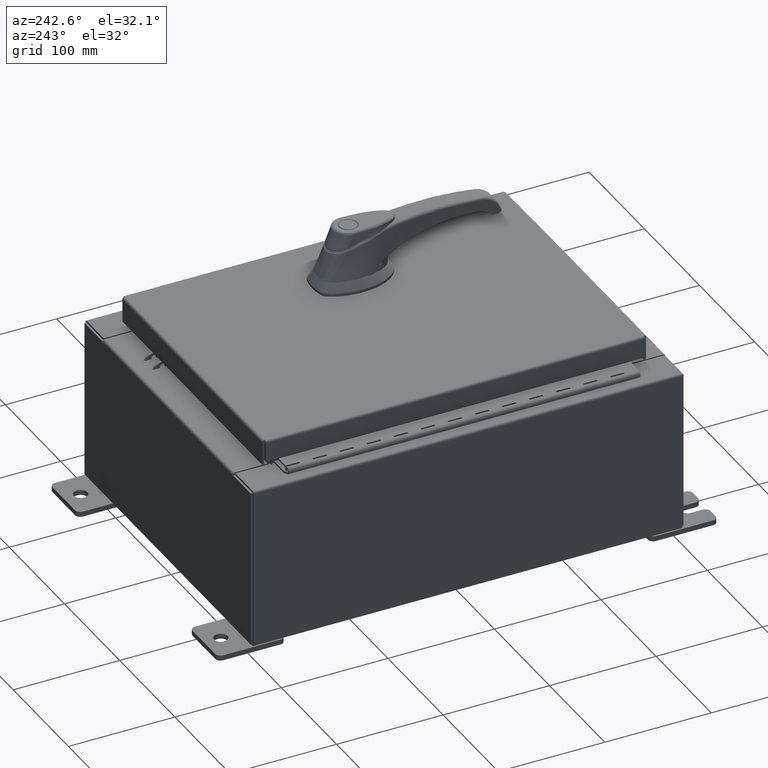
[diagram: clean part render]
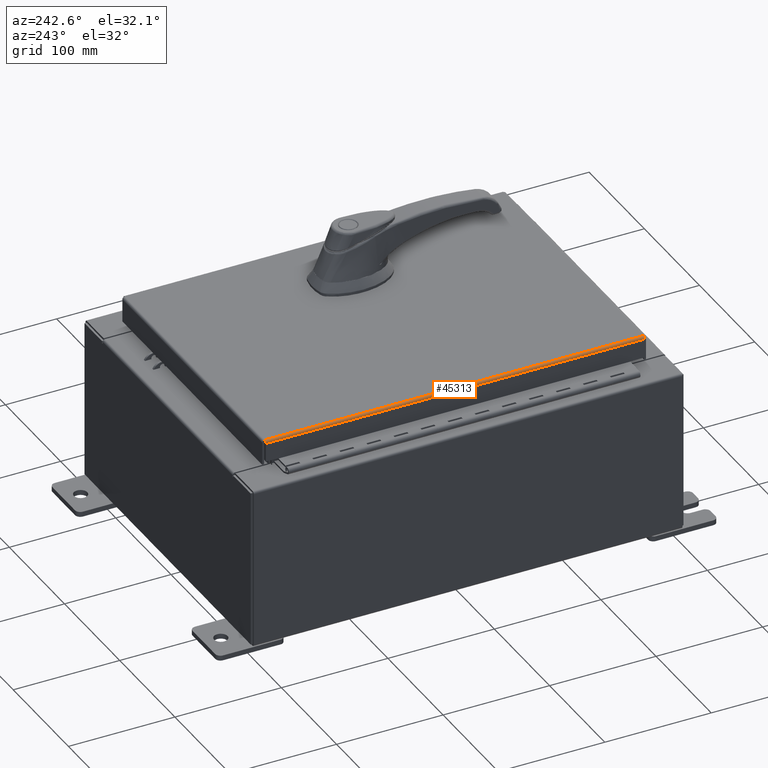
[diagram: same view with one face highlighted and labeled with its STEP entity id]
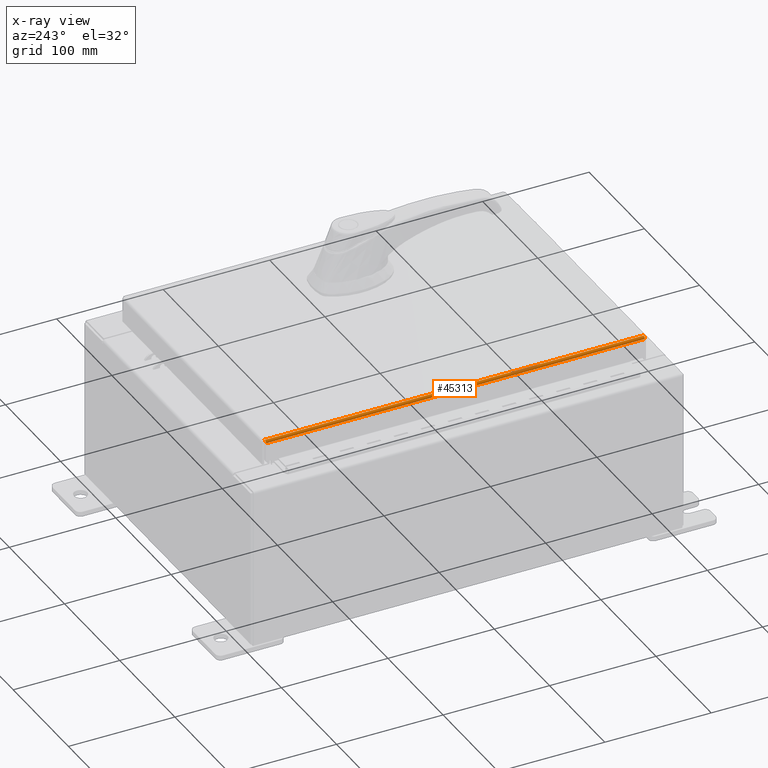
[diagram: x-ray of the same camera — body ghosted, the highlighted face saturated]
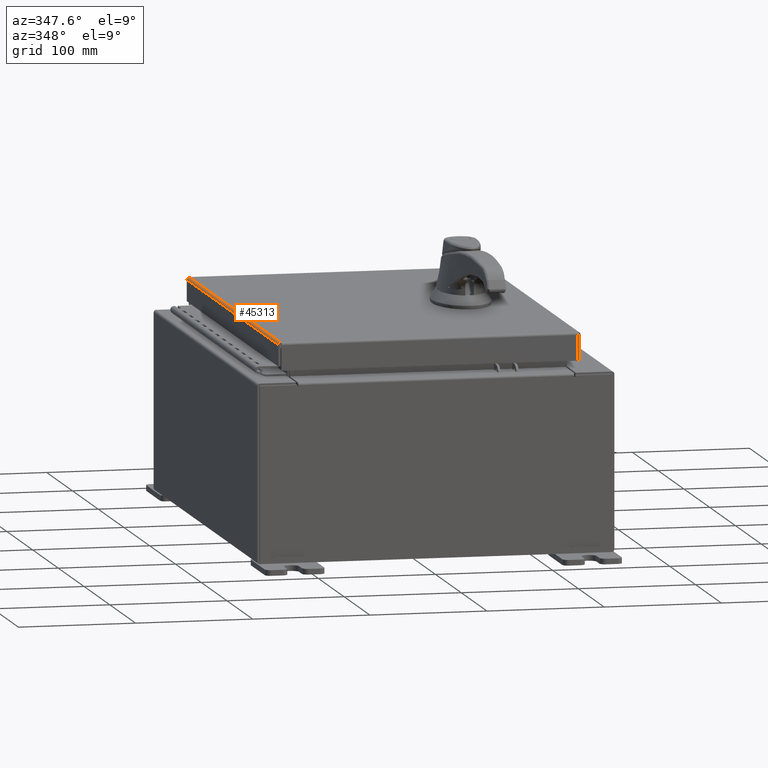
[diagram: same view with one face highlighted and labeled with its STEP entity id]
A machine part, auxiliary view. The second image highlights one B-rep face of the part: STEP entity #45313.
The next image is the same camera in x-ray: the body ghosted, the highlighted face saturated — about 0% of this face is hidden behind the body in this view.
A second angle (auxiliary view) of the same face is appended — the face is thin or edge-on in the first view.
In plain terms, the highlighted cylindrical surface (edge-blend (fillet) strip) has radius 2.2276 mm, axis along (0, 1, 0).
Its self-contained STEP definition (entity closure, byte-faithful):
#2674 = CYLINDRICAL_SURFACE ( 'NONE', #84549, 0.08770000000000026400 ) ;
#3148 = CARTESIAN_POINT ( 'NONE',  ( -4.990300000000000400, -7.006300000000000400, -2.219626494852214000E-016 ) ) ;
#3771 = CARTESIAN_POINT ( 'NONE',  ( -5.060430782078321400, 7.005633754219491700, -0.03380425265820009200 ) ) ;
#4217 = VECTOR ( 'NONE', #41834, 39.37007874015748100 ) ;
#5210 = FACE_OUTER_BOUND ( 'NONE', #10260, .T. ) ;
#6686 = CARTESIAN_POINT ( 'NONE',  ( -5.075717403743813500, -7.005348220313559100, -0.06474471054169118900 ) ) ;
#10260 = EDGE_LOOP ( 'NONE', ( #17006, #90443, #102206, #62843 ) ) ;
#11975 = CARTESIAN_POINT ( 'NONE',  ( -5.034467384578530200, 7.005919288125422600, -0.01106893374133176100 ) ) ;
#14915 = CARTESIAN_POINT ( 'NONE',  ( -5.078000000000001200, -7.005157864376269700, -0.08770000000000007000 ) ) ;
#16193 = B_SPLINE_CURVE_WITH_KNOTS ( 'NONE', 3,
 ( #93483, #52060, #101748, #52758, #3771, #60979, #11975, #69191, #20215, #77400 ),
 .UNSPECIFIED., .F., .F.,
 ( 4, 2, 2, 2, 4 ),
 ( 0.0000000000000000000, 0.2500000000000000000, 0.5000000000000000000, 0.7500000000000000000, 1.000000000000000000 ),
 .UNSPECIFIED. ) ;
#17006 = ORIENTED_EDGE ( 'NONE', *, *, #67455, .F. ) ;
#18657 = DIRECTION ( 'NONE',  ( -1.000000000000000000, 0.0000000000000000000, 3.114992011019675100E-015 ) ) ;
#20215 = CARTESIAN_POINT ( 'NONE',  ( -5.001779903154994300, 7.006204822031357100, -2.037547758946368100E-016 ) ) ;
#20544 = DIRECTION ( 'NONE',  ( 0.0000000000000000000, -1.000000000000000000, 0.0000000000000000000 ) ) ;
#26012 = LINE ( 'NONE', #82152, #4217 ) ;
#30637 = B_SPLINE_CURVE_WITH_KNOTS ( 'NONE', 3,
 ( #104289, #38902, #39267, #96417, #47451, #104635, #55696, #6686, #63917, #14915 ),
 .UNSPECIFIED., .F., .F.,
 ( 4, 2, 2, 2, 4 ),
 ( 0.0000000000000000000, 0.2500000000000000000, 0.5000000000000000000, 0.7500000000000000000, 1.000000000000000000 ),
 .UNSPECIFIED. ) ;
#30751 = VERTEX_POINT ( 'NONE', #68608 ) ;
#32313 = EDGE_CURVE ( 'NONE', #66802, #30751, #16193, .T. ) ;
#38902 = CARTESIAN_POINT ( 'NONE',  ( -5.001779903154992500, -7.006204822031357100, -2.043883832173860400E-016 ) ) ;
#39267 = CARTESIAN_POINT ( 'NONE',  ( -5.013255289458309800, -7.006109644062711100, -0.002282596256188924700 ) ) ;
#41834 = DIRECTION ( 'NONE',  ( 3.797360338743712300E-031, -1.000000000000000000, -1.119390514946887900E-045 ) ) ;
#45313 = ADVANCED_FACE ( 'NONE', ( #5210 ), #2674, .T. ) ;
#47451 = CARTESIAN_POINT ( 'NONE',  ( -5.044195747341800200, -7.005824110156779300, -0.01756921792167976500 ) ) ;
#49294 = VERTEX_POINT ( 'NONE', #3148 ) ;
#49545 = VERTEX_POINT ( 'NONE', #61749 ) ;
#51258 = LINE ( 'NONE', #102075, #94716 ) ;
#52060 = CARTESIAN_POINT ( 'NONE',  ( -5.078000000000001200, 7.005253042344914900, -0.07622009684500732900 ) ) ;
#52758 = CARTESIAN_POINT ( 'NONE',  ( -5.066931066258668200, 7.005538576250844900, -0.04353261542147222200 ) ) ;
#55696 = CARTESIAN_POINT ( 'NONE',  ( -5.066931066258668200, -7.005538576250847500, -0.04353261542147222900 ) ) ;
#60979 = CARTESIAN_POINT ( 'NONE',  ( -5.044195747341799300, 7.005824110156780200, -0.01756921792167976500 ) ) ;
#61749 = CARTESIAN_POINT ( 'NONE',  ( -5.078000000000001200, -7.005157864376269700, -0.08770000000000007000 ) ) ;
#62843 = ORIENTED_EDGE ( 'NONE', *, *, #70429, .F. ) ;
#63917 = CARTESIAN_POINT ( 'NONE',  ( -5.078000000000001200, -7.005253042344914900, -0.07622009684500735700 ) ) ;
#66802 = VERTEX_POINT ( 'NONE', #84321 ) ;
#67455 = EDGE_CURVE ( 'NONE', #30751, #49294, #51258, .T. ) ;
#68608 = CARTESIAN_POINT ( 'NONE',  ( -4.990300000000000400, 7.006300000000000400, -2.048885995248197400E-016 ) ) ;
#69191 = CARTESIAN_POINT ( 'NONE',  ( -5.013255289458311600, 7.006109644062711100, -0.002282596256188923800 ) ) ;
#70429 = EDGE_CURVE ( 'NONE', #49294, #49545, #30637, .T. ) ;
#76996 = EDGE_CURVE ( 'NONE', #66802, #49545, #26012, .T. ) ;
#77400 = CARTESIAN_POINT ( 'NONE',  ( -4.990300000000000400, 7.006300000000000400, -2.048885995248197400E-016 ) ) ;
#82152 = CARTESIAN_POINT ( 'NONE',  ( -5.078000000000001200, -7.094000000000000300, -0.08770000000000004200 ) ) ;
#84024 = CARTESIAN_POINT ( 'NONE',  ( -4.990300000000000400, 7.006300000000000400, -0.08770000000000030500 ) ) ;
#84321 = CARTESIAN_POINT ( 'NONE',  ( -5.078000000000001200, 7.005157864376269700, -0.08770000000000004200 ) ) ;
#84549 = AXIS2_PLACEMENT_3D ( 'NONE', #84024, #92276, #18657 ) ;
#90443 = ORIENTED_EDGE ( 'NONE', *, *, #32313, .F. ) ;
#92276 = DIRECTION ( 'NONE',  ( -0.0000000000000000000, 1.000000000000000000, -0.0000000000000000000 ) ) ;
#93483 = CARTESIAN_POINT ( 'NONE',  ( -5.078000000000001200, 7.005157864376269700, -0.08770000000000004200 ) ) ;
#94716 = VECTOR ( 'NONE', #20544, 39.37007874015748100 ) ;
#96417 = CARTESIAN_POINT ( 'NONE',  ( -5.034467384578528400, -7.005919288125420900, -0.01106893374133176100 ) ) ;
#101748 = CARTESIAN_POINT ( 'NONE',  ( -5.075717403743813500, 7.005348220313559100, -0.06474471054169118900 ) ) ;
#102075 = CARTESIAN_POINT ( 'NONE',  ( -4.990300000000000400, 7.006300000000000400, -2.048885995248197400E-016 ) ) ;
#102206 = ORIENTED_EDGE ( 'NONE', *, *, #76996, .T. ) ;
#104289 = CARTESIAN_POINT ( 'NONE',  ( -4.990300000000000400, -7.006300000000000400, -2.219626494852214000E-016 ) ) ;
#104635 = CARTESIAN_POINT ( 'NONE',  ( -5.060430782078324100, -7.005633754219490000, -0.03380425265820009900 ) ) ;